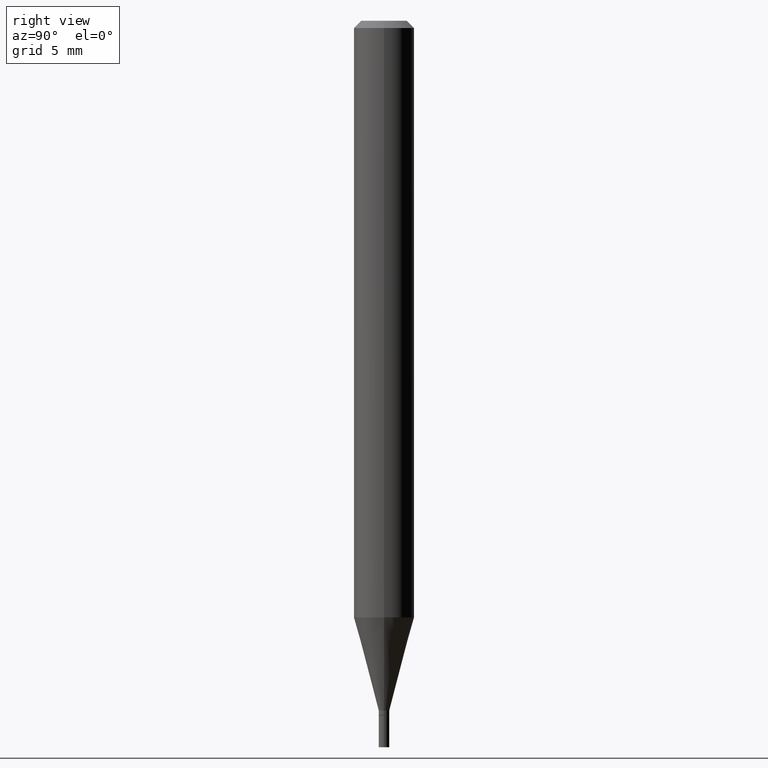
[diagram: clean part render]
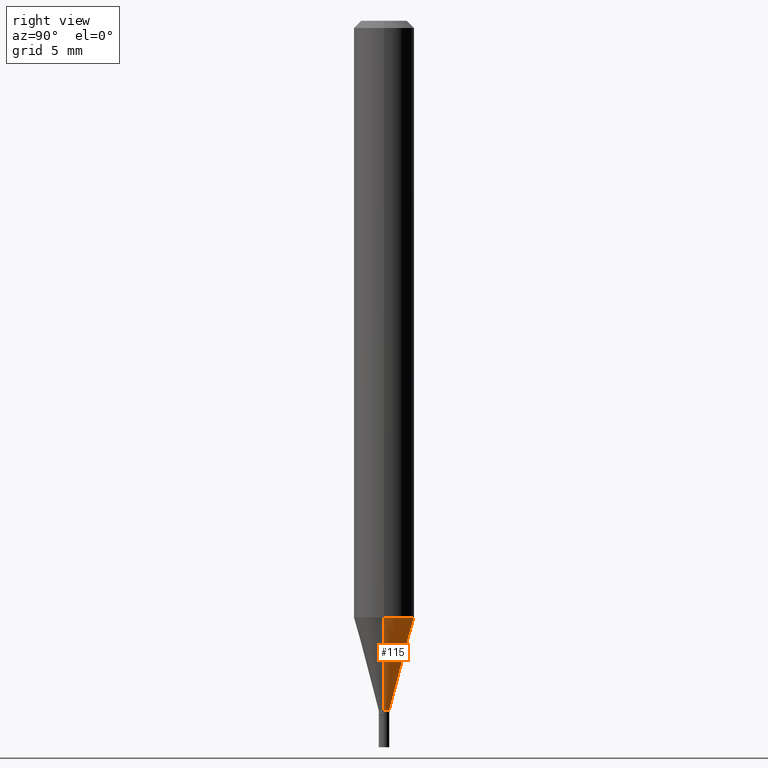
[diagram: same view with one face highlighted and labeled with its STEP entity id]
A machine part, right view. The second image highlights one B-rep face of the part: STEP entity #115.
In plain terms, the highlighted conical surface has half-angle 15 deg.
Its self-contained STEP definition (entity closure, byte-faithful):
#8 = VERTEX_POINT ( 'NONE', #300 ) ;
#18 = LINE ( 'NONE', #233, #48 ) ;
#31 = EDGE_CURVE ( 'NONE', #152, #283, #18, .T. ) ;
#33 = AXIS2_PLACEMENT_3D ( 'NONE', #116, #36, #466 ) ;
#36 = DIRECTION ( 'NONE',  ( -2.445468806185136597E-29, 3.491481338843145583E-15, 1.000000000000000000 ) ) ;
#48 = VECTOR ( 'NONE', #90, 39.37007874015748143 ) ;
#69 = CARTESIAN_POINT ( 'NONE',  ( 3.482347580007634944E-29, -4.971869426512640168E-15, -1.424000000000000155 ) ) ;
#90 = DIRECTION ( 'NONE',  ( -0.2588190451025216832, 5.211531920934551831E-15, 0.9659258262890679791 ) ) ;
#115 = ADVANCED_FACE ( 'NONE', ( #317 ), #250, .T. ) ;
#116 = CARTESIAN_POINT ( 'NONE',  ( 3.012326967607737433E-29, -4.300804560375218494E-15, -1.231799383410203452 ) ) ;
#134 = CIRCLE ( 'NONE', #162, 0.01099999999999991956 ) ;
#138 = DIRECTION ( 'NONE',  ( 1.000000000000000000, -6.982962677686295898E-15, 0.000000000000000000 ) ) ;
#143 = CARTESIAN_POINT ( 'NONE',  ( 0.01099999999999991956, -5.048682015967188692E-15, -1.424000000000000155 ) ) ;
#152 = VERTEX_POINT ( 'NONE', #465 ) ;
#153 = CIRCLE ( 'NONE', #33, 0.06250000000000000000 ) ;
#160 = EDGE_CURVE ( 'NONE', #8, #301, #345, .T. ) ;
#162 = AXIS2_PLACEMENT_3D ( 'NONE', #69, #207, #311 ) ;
#207 = DIRECTION ( 'NONE',  ( -2.445468806185136597E-29, 3.491481338843145583E-15, 1.000000000000000000 ) ) ;
#209 = EDGE_CURVE ( 'NONE', #8, #152, #134, .T. ) ;
#213 = CARTESIAN_POINT ( 'NONE',  ( -0.06249999999999997918, -3.856715350525155878E-15, -1.231799383410203452 ) ) ;
#224 = ORIENTED_EDGE ( 'NONE', *, *, #209, .T. ) ;
#233 = CARTESIAN_POINT ( 'NONE',  ( -0.01099999999999991956, -4.893709725579029078E-15, -1.424000000000000155 ) ) ;
#241 = DIRECTION ( 'NONE',  ( 0.2588190451025216832, 1.565188264969619798E-15, 0.9659258262890679791 ) ) ;
#250 = CONICAL_SURFACE ( 'NONE', #273, 0.01099999999999991956, 0.2617993877991502960 ) ;
#254 = ORIENTED_EDGE ( 'NONE', *, *, #31, .T. ) ;
#273 = AXIS2_PLACEMENT_3D ( 'NONE', #285, #463, #138 ) ;
#283 = VERTEX_POINT ( 'NONE', #213 ) ;
#285 = CARTESIAN_POINT ( 'NONE',  ( 3.482347580007634944E-29, -4.971869426512640168E-15, -1.424000000000000155 ) ) ;
#300 = CARTESIAN_POINT ( 'NONE',  ( 0.01099999999999991956, -5.048682015967188692E-15, -1.424000000000000155 ) ) ;
#301 = VERTEX_POINT ( 'NONE', #440 ) ;
#303 = EDGE_CURVE ( 'NONE', #301, #283, #153, .T. ) ;
#308 = ORIENTED_EDGE ( 'NONE', *, *, #303, .F. ) ;
#311 = DIRECTION ( 'NONE',  ( 1.000000000000000000, -6.982962677686295898E-15, 0.000000000000000000 ) ) ;
#317 = FACE_OUTER_BOUND ( 'NONE', #382, .T. ) ;
#327 = ORIENTED_EDGE ( 'NONE', *, *, #160, .F. ) ;
#345 = LINE ( 'NONE', #143, #388 ) ;
#382 = EDGE_LOOP ( 'NONE', ( #224, #254, #308, #327 ) ) ;
#388 = VECTOR ( 'NONE', #241, 39.37007874015748143 ) ;
#440 = CARTESIAN_POINT ( 'NONE',  ( 0.06249999999999997918, -4.737239727730610164E-15, -1.231799383410203452 ) ) ;
#463 = DIRECTION ( 'NONE',  ( -2.445468806185136597E-29, 3.491481338843145583E-15, 1.000000000000000000 ) ) ;
#465 = CARTESIAN_POINT ( 'NONE',  ( -0.01099999999999991956, -4.375212538052092478E-15, -1.424000000000000155 ) ) ;
#466 = DIRECTION ( 'NONE',  ( 1.000000000000000000, -6.982962677686262766E-15, 0.000000000000000000 ) ) ;